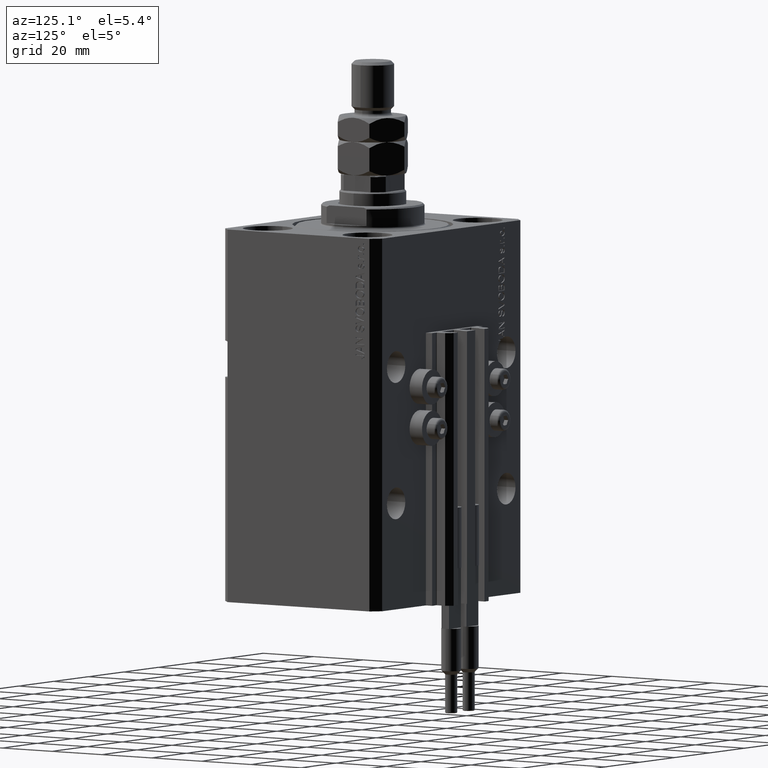
[diagram: clean part render]
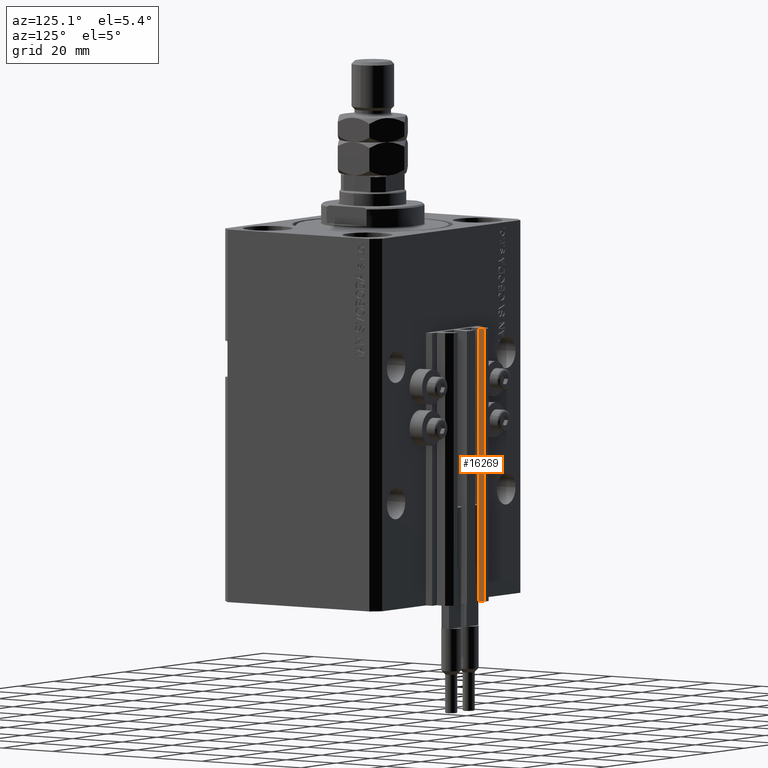
[diagram: same view with one face highlighted and labeled with its STEP entity id]
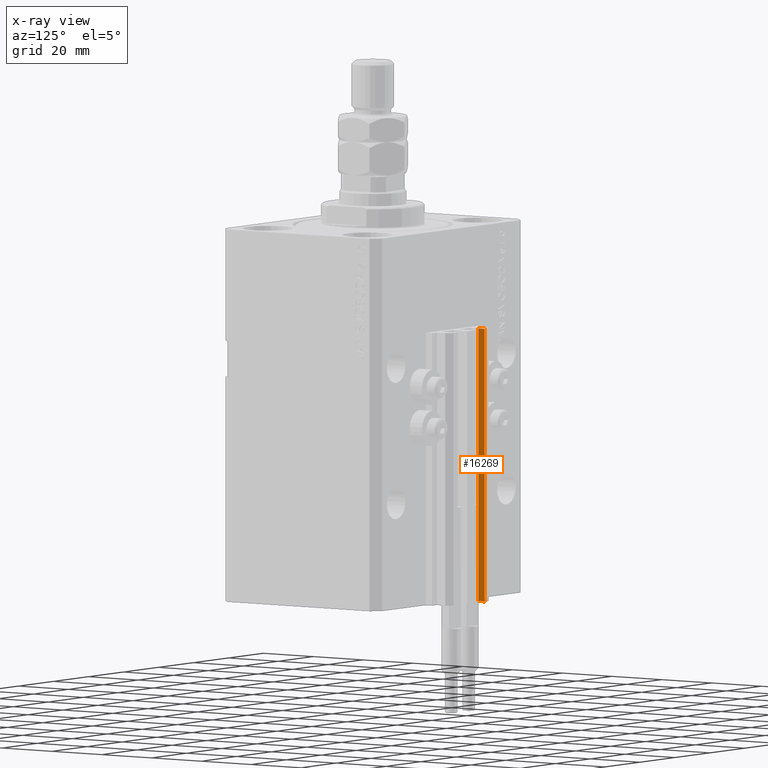
[diagram: x-ray of the same camera — body ghosted, the highlighted face saturated]
A machine part, auxiliary view. The second image highlights one B-rep face of the part: STEP entity #16269.
The next image is the same camera in x-ray: the body ghosted, the highlighted face saturated — about 0% of this face is hidden behind the body in this view.
In plain terms, the highlighted planar face has unit normal (1, 0, 0).
Its self-contained STEP definition (entity closure, byte-faithful):
#4463 = LINE ( 'NONE', #20045, #9663 ) ;
#4898 = LINE ( 'NONE', #47299, #20662 ) ;
#5631 = FACE_OUTER_BOUND ( 'NONE', #23966, .T. ) ;
#7512 = LINE ( 'NONE', #34847, #42485 ) ;
#9663 = VECTOR ( 'NONE', #12385, 1000.000000000000000 ) ;
#12385 = DIRECTION ( 'NONE',  ( 0.000000000000000000, 0.000000000000000000, 1.000000000000000000 ) ) ;
#15527 = ORIENTED_EDGE ( 'NONE', *, *, #41034, .F. ) ;
#16269 = ADVANCED_FACE ( 'NONE', ( #5631 ), #36297, .T. ) ;
#17269 = DIRECTION ( 'NONE',  ( 0.000000000000000000, 0.000000000000000000, 1.000000000000000000 ) ) ;
#17618 = EDGE_CURVE ( 'NONE', #43915, #48510, #24437, .T. ) ;
#18296 = CARTESIAN_POINT ( 'NONE',  ( -7.650000000000002132, 37.09999999999999432, -123.0000000000000000 ) ) ;
#20045 = CARTESIAN_POINT ( 'NONE',  ( -7.650000000000002132, 37.09999999999999432, -123.0000000000000000 ) ) ;
#20662 = VECTOR ( 'NONE', #27906, 1000.000000000000000 ) ;
#21005 = ORIENTED_EDGE ( 'NONE', *, *, #42186, .T. ) ;
#23966 = EDGE_LOOP ( 'NONE', ( #15527, #37271, #21005, #33813 ) ) ;
#24437 = LINE ( 'NONE', #40014, #36200 ) ;
#25714 = CARTESIAN_POINT ( 'NONE',  ( -7.650000000000002132, 39.49999999999999289, -123.0000000000000000 ) ) ;
#25797 = VERTEX_POINT ( 'NONE', #48160 ) ;
#27906 = DIRECTION ( 'NONE',  ( 0.000000000000000000, 1.000000000000000000, 0.000000000000000000 ) ) ;
#31286 = EDGE_CURVE ( 'NONE', #34572, #25797, #4463, .T. ) ;
#32850 = CARTESIAN_POINT ( 'NONE',  ( -7.650000000000002132, 39.49999999999999289, -33.00000000000000000 ) ) ;
#33813 = ORIENTED_EDGE ( 'NONE', *, *, #17618, .T. ) ;
#34572 = VERTEX_POINT ( 'NONE', #18296 ) ;
#34847 = CARTESIAN_POINT ( 'NONE',  ( -7.650000000000002132, 37.09999999999999432, -33.00000000000000000 ) ) ;
#36200 = VECTOR ( 'NONE', #17269, 1000.000000000000000 ) ;
#36297 = PLANE ( 'NONE',  #36348 ) ;
#36348 = AXIS2_PLACEMENT_3D ( 'NONE', #36788, #44194, #48765 ) ;
#36788 = CARTESIAN_POINT ( 'NONE',  ( -7.650000000000002132, 37.09999999999999432, -123.0000000000000000 ) ) ;
#37271 = ORIENTED_EDGE ( 'NONE', *, *, #31286, .F. ) ;
#37908 = DIRECTION ( 'NONE',  ( 0.000000000000000000, 1.000000000000000000, 0.000000000000000000 ) ) ;
#40014 = CARTESIAN_POINT ( 'NONE',  ( -7.650000000000002132, 39.49999999999999289, -123.0000000000000000 ) ) ;
#41034 = EDGE_CURVE ( 'NONE', #25797, #48510, #7512, .T. ) ;
#42186 = EDGE_CURVE ( 'NONE', #34572, #43915, #4898, .T. ) ;
#42485 = VECTOR ( 'NONE', #37908, 1000.000000000000000 ) ;
#43915 = VERTEX_POINT ( 'NONE', #25714 ) ;
#44194 = DIRECTION ( 'NONE',  ( 1.000000000000000000, 0.000000000000000000, 0.000000000000000000 ) ) ;
#47299 = CARTESIAN_POINT ( 'NONE',  ( -7.650000000000002132, 37.09999999999999432, -123.0000000000000000 ) ) ;
#48160 = CARTESIAN_POINT ( 'NONE',  ( -7.650000000000002132, 37.09999999999999432, -33.00000000000000000 ) ) ;
#48510 = VERTEX_POINT ( 'NONE', #32850 ) ;
#48765 = DIRECTION ( 'NONE',  ( 0.000000000000000000, 0.000000000000000000, -1.000000000000000000 ) ) ;